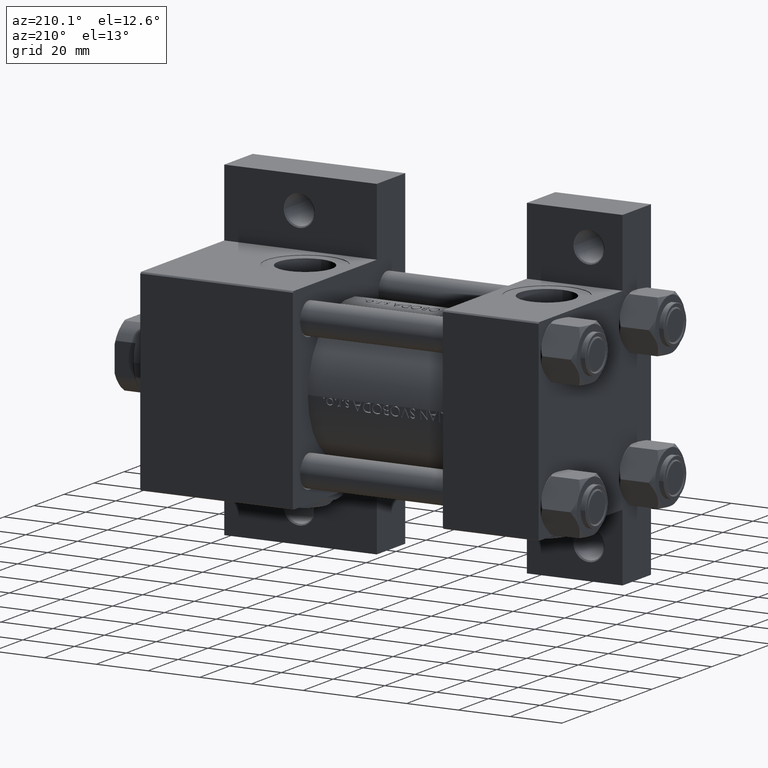
[diagram: clean part render]
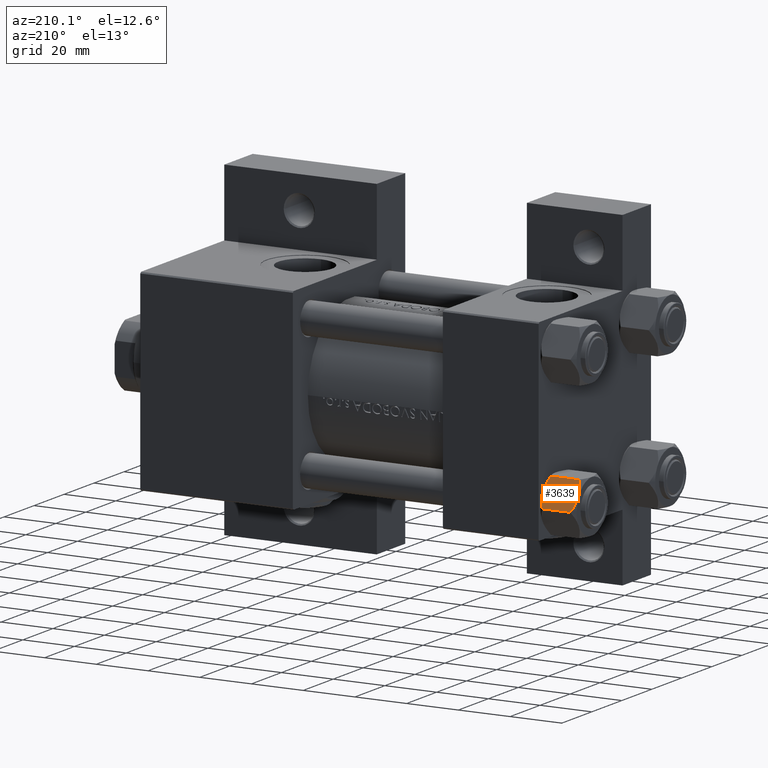
[diagram: same view with one face highlighted and labeled with its STEP entity id]
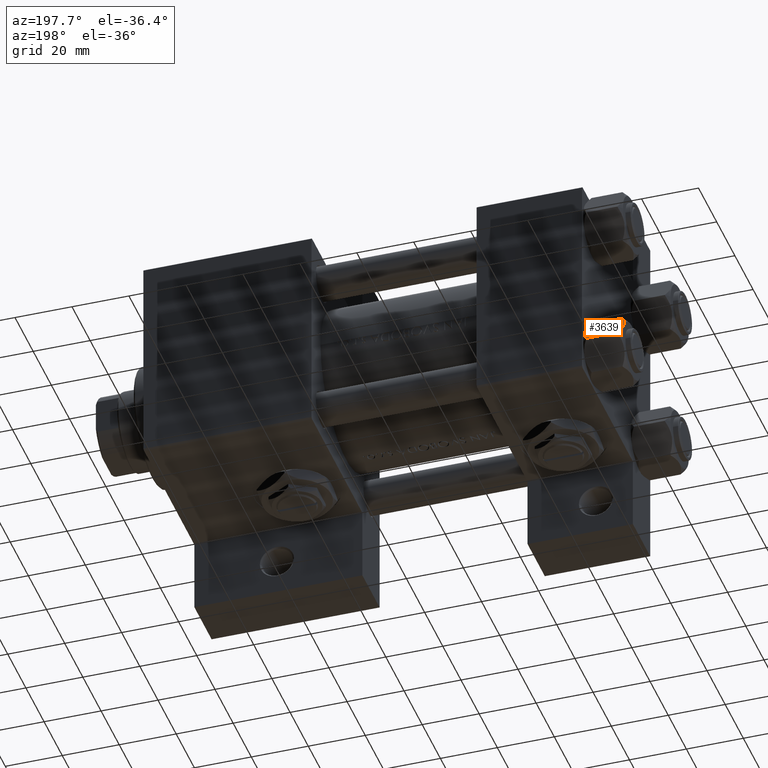
[diagram: same view with one face highlighted and labeled with its STEP entity id]
A machine part, auxiliary view. The second image highlights one B-rep face of the part: STEP entity #3639.
A second angle (auxiliary view) of the same face is appended — the face is thin or edge-on in the first view.
In plain terms, the highlighted planar face has unit normal (0, -0.866, -0.5).
Its self-contained STEP definition (entity closure, byte-faithful):
#600 = DIRECTION ( 'NONE',  ( -0.000000000000000000, -0.000000000000000000, 1.000000000000000000 ) ) ;
#685 = CARTESIAN_POINT ( 'NONE',  ( -8.969430103550378064, 4.590921729663314466, -14.00000000000000178 ) ) ;
#1546 = CARTESIAN_POINT ( 'NONE',  ( -5.809999999999997833, 10.06321519197518022, -12.44321519197518455 ) ) ;
#3485 = AXIS2_PLACEMENT_3D ( 'NONE', #49471, #23646, #15379 ) ;
#3504 = CARTESIAN_POINT ( 'NONE',  ( -11.16498164529022041, 0.7881149087337345760, -1.101766453314951821 ) ) ;
#3607 = PLANE ( 'NONE',  #3485 ) ;
#3639 = ADVANCED_FACE ( 'NONE', ( #42708 ), #3607, .F. ) ;
#3754 = CARTESIAN_POINT ( 'NONE',  ( -9.220295946303428636, 4.156409344131454020, 2.043043468777371629E-15 ) ) ;
#4094 = EDGE_CURVE ( 'NONE', #32133, #24668, #7979, .T. ) ;
#4440 = CARTESIAN_POINT ( 'NONE',  ( -8.715000000000001634, 5.031607595987591885, -14.00000000000000000 ) ) ;
#4476 = CARTESIAN_POINT ( 'NONE',  ( -5.809999999999997833, 10.06321519197518022, -1.556784808024815447 ) ) ;
#4579 = VERTEX_POINT ( 'NONE', #40168 ) ;
#4684 = CARTESIAN_POINT ( 'NONE',  ( -9.729165168613649328, 3.275021996682086822, -13.80960203119265906 ) ) ;
#5812 = CARTESIAN_POINT ( 'NONE',  ( -11.61999999999999922, 6.270720075510426383E-15, -12.44321519197518811 ) ) ;
#6515 = EDGE_CURVE ( 'NONE', #12571, #4579, #9029, .T. ) ;
#7497 = CARTESIAN_POINT ( 'NONE',  ( -7.700834831386344170, 6.788193195293096949, -0.1903979688073418330 ) ) ;
#7979 = B_SPLINE_CURVE_WITH_KNOTS ( 'NONE', 3,
 ( #34321, #30070, #34083, #30808, #7497, #14785, #23024, #41353 ),
 .UNSPECIFIED., .F., .F.,
 ( 4, 2, 2, 4 ),
 ( 2.544312114902182352E-07, 0.003011550106433540791, 0.004517197944044565316, 0.006022845781655589842 ),
 .UNSPECIFIED. ) ;
#8978 = VERTEX_POINT ( 'NONE', #1546 ) ;
#9029 = B_SPLINE_CURVE_WITH_KNOTS ( 'NONE', 3,
 ( #24463, #12461, #43282, #12940, #4684, #27255, #685, #4440 ),
 .UNSPECIFIED., .F., .F.,
 ( 4, 2, 2, 4 ),
 ( 2.544312114905218436E-07, 0.003011550106433537755, 0.004517197944044560980, 0.006022845781655582903 ),
 .UNSPECIFIED. ) ;
#9091 = CARTESIAN_POINT ( 'NONE',  ( -6.265018354709776638, 9.275100283241455301, -12.89823354668505218 ) ) ;
#9095 = LINE ( 'NONE', #43197, #12597 ) ;
#12334 = EDGE_CURVE ( 'NONE', #12571, #15145, #9095, .T. ) ;
#12461 = CARTESIAN_POINT ( 'NONE',  ( -11.16445427487471598, 0.7890283410878030645, -12.89876091710047312 ) ) ;
#12464 = EDGE_CURVE ( 'NONE', #8978, #32133, #13842, .T. ) ;
#12571 = VERTEX_POINT ( 'NONE', #5812 ) ;
#12597 = VECTOR ( 'NONE', #600, 1000.000000000000000 ) ;
#12940 = CARTESIAN_POINT ( 'NONE',  ( -9.974696630283190757, 2.849749030213795109, -13.69973261901325934 ) ) ;
#13842 = LINE ( 'NONE', #48184, #30991 ) ;
#13914 = ORIENTED_EDGE ( 'NONE', *, *, #4094, .F. ) ;
#14785 = CARTESIAN_POINT ( 'NONE',  ( -8.202333004087897450, 5.919572880271055659, -0.03994118060690795419 ) ) ;
#15109 = ORIENTED_EDGE ( 'NONE', *, *, #21438, .F. ) ;
#15145 = VERTEX_POINT ( 'NONE', #32857 ) ;
#15379 = DIRECTION ( 'NONE',  ( 0.5000000000000001110, 0.8660254037844384856, 0.000000000000000000 ) ) ;
#15648 = B_SPLINE_CURVE_WITH_KNOTS ( 'NONE', 3,
 ( #44178, #47929, #47684, #24862, #9091, #20610 ),
 .UNSPECIFIED., .F., .F.,
 ( 4, 2, 4 ),
 ( 0.006022845781655582903, 0.009013049135303629819, 0.01200325248895167847 ),
 .UNSPECIFIED. ) ;
#15779 = CARTESIAN_POINT ( 'NONE',  ( -11.61999999999999922, 6.301834029662224111E-15, -1.556784808024812117 ) ) ;
#17845 = DIRECTION ( 'NONE',  ( -0.000000000000000000, -0.000000000000000000, 1.000000000000000000 ) ) ;
#18015 = EDGE_LOOP ( 'NONE', ( #39860, #26163, #28191, #13914, #43179, #15109 ) ) ;
#20610 = CARTESIAN_POINT ( 'NONE',  ( -5.809999999999997833, 10.06321519197518022, -12.44321519197518455 ) ) ;
#21438 = EDGE_CURVE ( 'NONE', #4579, #8978, #15648, .T. ) ;
#23024 = CARTESIAN_POINT ( 'NONE',  ( -8.460569896449618099, 5.472293462311865753, 2.204732646931026331E-15 ) ) ;
#23646 = DIRECTION ( 'NONE',  ( 0.8660254037844385966, -0.5000000000000002220, 0.000000000000000000 ) ) ;
#24463 = CARTESIAN_POINT ( 'NONE',  ( -11.61999999999999922, 6.270720075510426383E-15, -12.44321519197518811 ) ) ;
#24668 = VERTEX_POINT ( 'NONE', #45365 ) ;
#24862 = CARTESIAN_POINT ( 'NONE',  ( -6.733375043383492020, 8.463882702393842550, -13.28854452935654962 ) ) ;
#26071 = CARTESIAN_POINT ( 'NONE',  ( -10.69662495661650325, 1.599332489581336780, -0.7114554706434498277 ) ) ;
#26163 = ORIENTED_EDGE ( 'NONE', *, *, #12334, .T. ) ;
#27255 = CARTESIAN_POINT ( 'NONE',  ( -9.227666995912096937, 4.143642311704127223, -13.96005881939308857 ) ) ;
#28191 = ORIENTED_EDGE ( 'NONE', *, *, #44601, .F. ) ;
#30070 = CARTESIAN_POINT ( 'NONE',  ( -6.265545725125282850, 9.274186850887385702, -1.101239082899535537 ) ) ;
#30808 = CARTESIAN_POINT ( 'NONE',  ( -7.455303369716805406, 7.213466161761384221, -0.3002673809867381083 ) ) ;
#30991 = VECTOR ( 'NONE', #17845, 1000.000000000000000 ) ;
#32133 = VERTEX_POINT ( 'NONE', #4476 ) ;
#32857 = CARTESIAN_POINT ( 'NONE',  ( -11.61999999999999922, 6.301834029662224111E-15, -1.556784808024812117 ) ) ;
#34083 = CARTESIAN_POINT ( 'NONE',  ( -6.731401448974986934, 8.467301068182916168, -0.7141438259524663934 ) ) ;
#34321 = CARTESIAN_POINT ( 'NONE',  ( -5.809999999999997833, 10.06321519197518022, -1.556784808024815447 ) ) ;
#34336 = CARTESIAN_POINT ( 'NONE',  ( -8.715000000000001634, 5.031607595987591885, 0.000000000000000000 ) ) ;
#37859 = CARTESIAN_POINT ( 'NONE',  ( -9.716999946243698005, 3.296092779912228377, -0.1545239700039844066 ) ) ;
#39860 = ORIENTED_EDGE ( 'NONE', *, *, #6515, .F. ) ;
#40168 = CARTESIAN_POINT ( 'NONE',  ( -8.715000000000001634, 5.031607595987591885, -14.00000000000000000 ) ) ;
#41353 = CARTESIAN_POINT ( 'NONE',  ( -8.715000000000001634, 5.031607595987591885, 0.000000000000000000 ) ) ;
#41950 = B_SPLINE_CURVE_WITH_KNOTS ( 'NONE', 3,
 ( #34336, #3754, #37859, #26071, #3504, #15779 ),
 .UNSPECIFIED., .F., .F.,
 ( 4, 2, 4 ),
 ( 0.006022845781655589842, 0.009013049135303635023, 0.01200325248895167847 ),
 .UNSPECIFIED. ) ;
#42708 = FACE_OUTER_BOUND ( 'NONE', #18015, .T. ) ;
#43179 = ORIENTED_EDGE ( 'NONE', *, *, #12464, .F. ) ;
#43197 = CARTESIAN_POINT ( 'NONE',  ( -11.61999999999999922, 6.288644352490894150E-15, -14.00000000000000000 ) ) ;
#43282 = CARTESIAN_POINT ( 'NONE',  ( -10.69859855102501101, 1.595914123792268491, -13.28585617404753627 ) ) ;
#44178 = CARTESIAN_POINT ( 'NONE',  ( -8.715000000000001634, 5.031607595987591885, -14.00000000000000000 ) ) ;
#44601 = EDGE_CURVE ( 'NONE', #24668, #15145, #41950, .T. ) ;
#45365 = CARTESIAN_POINT ( 'NONE',  ( -8.715000000000001634, 5.031607595987591885, 0.000000000000000000 ) ) ;
#47684 = CARTESIAN_POINT ( 'NONE',  ( -7.713000053756302599, 6.767122412062954062, -13.84547602999601601 ) ) ;
#47929 = CARTESIAN_POINT ( 'NONE',  ( -8.209704053696567527, 5.906805847843725310, -14.00000000000000533 ) ) ;
#48184 = CARTESIAN_POINT ( 'NONE',  ( -5.809999999999997833, 10.06321519197518022, -14.00000000000000000 ) ) ;
#49471 = CARTESIAN_POINT ( 'NONE',  ( -11.61999999999999922, 6.288644352490894150E-15, -14.00000000000000000 ) ) ;